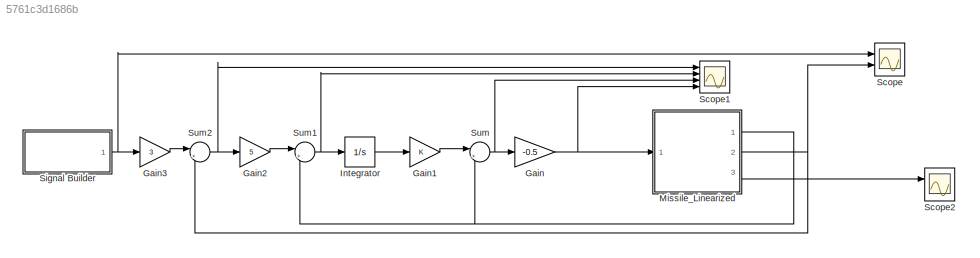
MODEL slx_5761c3d1686b
KIND model
CONFIG AbsTol = auto
CONFIG FixedStep = auto
CONFIG MaxStep = auto
CONFIG MinStep = auto
CONFIG RelTol = 1e-3
CONFIG SampleTimeConstraint = Unconstrained
CONFIG Solver = VariableStepAuto
CONFIG SolverMode = Auto
CONFIG SolverName = VariableStepAuto
CONFIG StartTime = 0.0
CONFIG StopTime = 10.0
BLOCK [Gain] Gain
  Gain = -0.5
  OutDataTypeStr = Inherit: Inherit via internal rule
  ParamDataTypeStr = Inherit: Inherit via internal rule
  SaturateOnIntegerOverflow = off
BLOCK [Gain] Gain1
  OutDataTypeStr = Inherit: Inherit via internal rule
  ParamDataTypeStr = Inherit: Inherit via internal rule
  SaturateOnIntegerOverflow = off
BLOCK [Gain] Gain2
  Gain = 5
  OutDataTypeStr = Inherit: Inherit via internal rule
  ParamDataTypeStr = Inherit: Inherit via internal rule
  SaturateOnIntegerOverflow = off
BLOCK [Gain] Gain3
  Gain = 3
  OutDataTypeStr = Inherit: Inherit via internal rule
  ParamDataTypeStr = Inherit: Inherit via internal rule
  SaturateOnIntegerOverflow = off
BLOCK [Integrator] Integrator
  Ports = [1, 1]
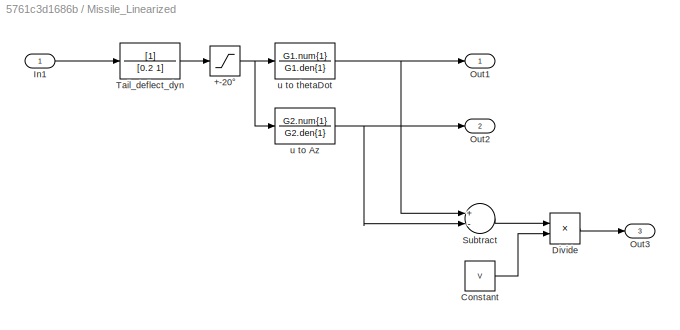
BLOCK [SubSystem] Missile_Linearized
  Ports = [1, 3]
  RequestExecContextInheritance = off
  Variant = off
BLOCK [Saturate] Missile_Linearized/+-20°
  InputPortMap = u0
  LowerLimit = -0.35
  Ports = [1, 1]
  UpperLimit = 0.35
BLOCK [Constant] Missile_Linearized/Constant
  Value = V
BLOCK [Product] Missile_Linearized/Divide
  InputSameDT = off
  Inputs = */
  OutDataTypeStr = Inherit: Inherit via internal rule
  Ports = [2, 1]
  RndMeth = Floor
  SaturateOnIntegerOverflow = off
BLOCK [Inport] Missile_Linearized/In1
  IconDisplay = Port number
BLOCK [Outport] Missile_Linearized/Out1
  IconDisplay = Port number
BLOCK [Outport] Missile_Linearized/Out2
  IconDisplay = Port number
  Port = 2
BLOCK [Outport] Missile_Linearized/Out3
  IconDisplay = Port number
  Port = 3
BLOCK [Sum] Missile_Linearized/Subtract
  InputSameDT = off
  Inputs = +-
  OutDataTypeStr = Inherit: Inherit via internal rule
  Ports = [2, 1]
  SaturateOnIntegerOverflow = off
BLOCK [TransferFcn] Missile_Linearized/Tail_deflect_dyn
  Denominator = [0.2 1]
BLOCK [TransferFcn] Missile_Linearized/u to Az
  Denominator = G2.den{1}
  Numerator = G2.num{1}
BLOCK [TransferFcn] Missile_Linearized/u to thetaDot
  Denominator = G1.den{1}
  Numerator = G1.num{1}
BLOCK [Scope] Scope
  NumInputPorts = 2
  Ports = [2]
  ScopeSpecificationString = Simulink.scopes.TimeScopeBlockCfg('CurrentConfiguration', extmgr.ConfigurationSet(extmgr.Configuration('Core','General UI',true),extmgr.Configuration('Core','Source UI',true),extmgr.Configuration('Sources','WiredSimulink',true),extmgr.Configuration('Visuals','Time Domain',true,'SerializedDisplays',{struct('MinYLimReal','-0.17562','MaxYLimReal','1.13063','YLabelReal','','MinYLimMag','0.00000','MaxY...<+1408ch>
BLOCK [Scope] Scope1
  NumInputPorts = 4
  Ports = [4]
  ScopeSpecificationString = Simulink.scopes.TimeScopeBlockCfg('CurrentConfiguration', extmgr.ConfigurationSet(extmgr.Configuration('Core','General UI',true),extmgr.Configuration('Core','Source UI',true),extmgr.Configuration('Sources','WiredSimulink',true,'DataLoggingVariableName','ScopeData1'),extmgr.Configuration('Visuals','Time Domain',true,'SerializedDisplays',{struct('MinYLimReal','-1.50406','MaxYLimReal','3.54649','YLab...<+3361ch>
BLOCK [Scope] Scope2
  NumInputPorts = 2
  Ports = [2]
  ScopeSpecificationString = Simulink.scopes.TimeScopeBlockCfg('CurrentConfiguration', extmgr.ConfigurationSet(extmgr.Configuration('Core','General UI',true),extmgr.Configuration('Core','Source UI',true),extmgr.Configuration('Sources','WiredSimulink',true,'DataLoggingVariableName','ScopeData2'),extmgr.Configuration('Visuals','Time Domain',true,'SerializedDisplays',{struct('MinYLimReal','-0.15434','MaxYLimReal','1.01617','YLab...<+1442ch>
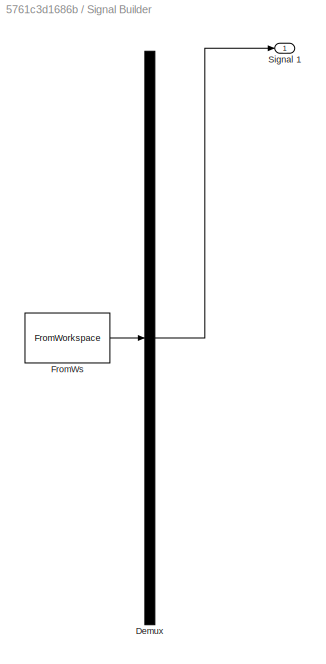
BLOCK [SubSystem] Signal Builder
  ClipboardFcn = sigbuilder_block('clipboard');
  CloseFcn = sigbuilder_block('close');
  ContinueFcn = sigbuilder_block('continue');
  CopyFcn = sigbuilder_block('copy');
  DeleteFcn = sigbuilder_block('delete');
  LoadFcn = sigbuilder_block('load');
  MaskHideContents = on
  ModelCloseFcn = sigbuilder_block('modelClose');
  NameChangeFcn = sigbuilder_block('namechange');
  OpenFcn = sigbuilder_block('open',[437.25 153 550.5 359.25 ]);
  PauseFcn = sigbuilder_block('pause');
  Ports = [0, 1]
  PreSaveFcn = sigbuilder_block('preSave');
  RequestExecContextInheritance = off
  StartFcn = sigbuilder_block('start');
  StopFcn = sigbuilder_block('stop');
  Tag = STV Subsys
  Variant = off
BLOCK [Demux] Signal Builder/Demux
  Outputs = 1
  Ports = [1, 1]
  Tag = STV Demux
BLOCK [FromWorkspace] Signal Builder/FromWs
  SampleTime = 0
  Tag = STV FromWs
  VariableName = tuvar
  ZeroCross = on
BLOCK [Outport] Signal Builder/Signal 1
  IconDisplay = Port number
  Tag = STV Outport
BLOCK [Sum] Sum
  IconShape = round
  InputSameDT = off
  Inputs = |+-
  OutDataTypeStr = Inherit: Inherit via internal rule
  Ports = [2, 1]
  SaturateOnIntegerOverflow = off
BLOCK [Sum] Sum1
  IconShape = round
  InputSameDT = off
  Inputs = |+-
  OutDataTypeStr = Inherit: Inherit via internal rule
  Ports = [2, 1]
  SaturateOnIntegerOverflow = off
BLOCK [Sum] Sum2
  IconShape = round
  InputSameDT = off
  Inputs = |+-
  OutDataTypeStr = Inherit: Inherit via internal rule
  Ports = [2, 1]
  SaturateOnIntegerOverflow = off
LINE Gain1:1 -> Sum:1
LINE Gain2:1 -> Sum1:1
LINE Gain3:1 -> Sum2:1
NET Gain:1 -> Missile_Linearized:1, Scope1:4
LINE Integrator:1 -> Gain1:1
NET Missile_Linearized/+-20°:1 -> Missile_Linearized/u to Az:1, Missile_Linearized/u to thetaDot:1
LINE Missile_Linearized/Constant:1 -> Missile_Linearized/Divide:2
LINE Missile_Linearized/Divide:1 -> Missile_Linearized/Out3:1
LINE Missile_Linearized/In1:1 -> Missile_Linearized/Tail_deflect_dyn:1
LINE Missile_Linearized/Subtract:1 -> Missile_Linearized/Divide:1
LINE Missile_Linearized/Tail_deflect_dyn:1 -> Missile_Linearized/+-20°:1
NET Missile_Linearized/u to Az:1 -> Missile_Linearized/Out2:1, Missile_Linearized/Subtract:2
NET Missile_Linearized/u to thetaDot:1 -> Missile_Linearized/Out1:1, Missile_Linearized/Subtract:1
NET Missile_Linearized:1 -> Sum1:2, Sum:2
NET Missile_Linearized:2 -> Scope:2, Sum2:2
LINE Missile_Linearized:3 -> Scope2:1
NET Signal Builder:1 -> Gain3:1, Scope:1
NET Sum1:1 -> Integrator:1, Scope1:2
NET Sum2:1 -> Gain2:1, Scope1:1
NET Sum:1 -> Gain:1, Scope1:3
note: NET lines group one-source signal fan-out (src -> all destinations, sorted); 1:1 wires keep LINE
